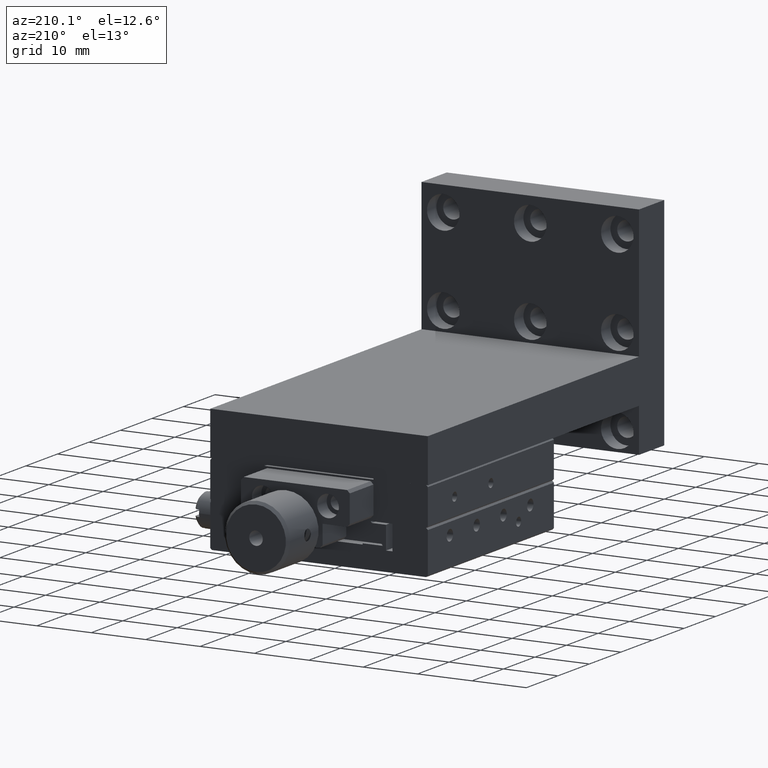
[diagram: clean part render]
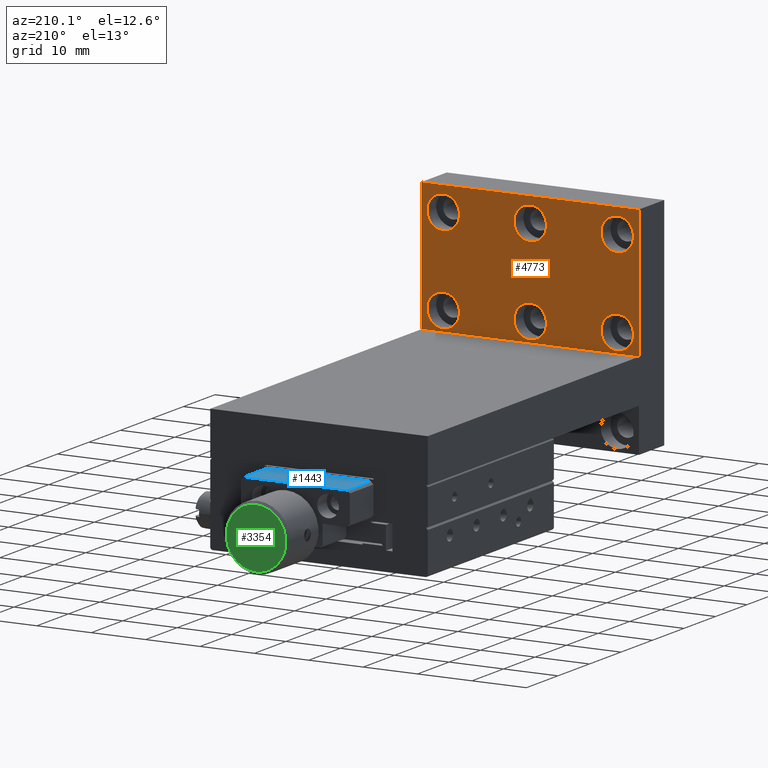
[diagram: same view with three faces highlighted in distinct colors, each labeled with its STEP entity id]
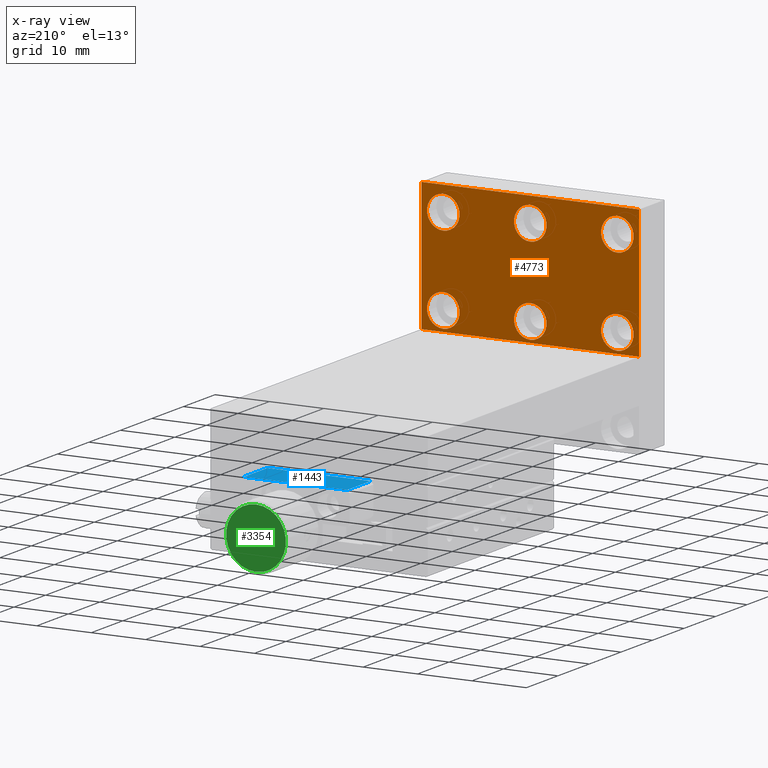
[diagram: x-ray of the same camera — body ghosted, the three highlighted faces saturated]
A machine part, auxiliary view with three faces highlighted in distinct colors.
The next image is the same camera in x-ray (body ghosted, the three faces saturated) — at least one of them is partly hidden behind the body in this view.
Their STEP definitions:

[orange] entity #4773 — the highlighted planar face has unit normal (0, -1, 0).
#43 = CARTESIAN_POINT ( 'NONE',  ( 20.00000000000000000, 8.000000000000000000, 8.000000000000000000 ) ) ;
#80 = CARTESIAN_POINT ( 'NONE',  ( 16.00000000000000000, 8.000000000000000000, 24.50000000000000000 ) ) ;
#152 = VERTEX_POINT ( 'NONE', #80 ) ;
#165 = EDGE_LOOP ( 'NONE', ( #3560 ) ) ;
#239 = AXIS2_PLACEMENT_3D ( 'NONE', #4601, #2807, #2842 ) ;
#263 = EDGE_LOOP ( 'NONE', ( #4228 ) ) ;
#352 = ORIENTED_EDGE ( 'NONE', *, *, #2422, .F. ) ;
#573 = VERTEX_POINT ( 'NONE', #1654 ) ;
#642 = EDGE_CURVE ( 'NONE', #5756, #5756, #5927, .T. ) ;
#960 = VECTOR ( 'NONE', #5364, 1000.000000000000000 ) ;
#973 = CIRCLE ( 'NONE', #2455, 2.999999999999999112 ) ;
#1000 = DIRECTION ( 'NONE',  ( 0.000000000000000000, 0.000000000000000000, -1.000000000000000000 ) ) ;
#1036 = DIRECTION ( 'NONE',  ( -0.000000000000000000, 1.000000000000000000, -0.000000000000000000 ) ) ;
#1045 = EDGE_LOOP ( 'NONE', ( #5657 ) ) ;
#1168 = ORIENTED_EDGE ( 'NONE', *, *, #5557, .F. ) ;
#1324 = DIRECTION ( 'NONE',  ( -0.000000000000000000, 1.000000000000000000, -0.000000000000000000 ) ) ;
#1458 = VERTEX_POINT ( 'NONE', #3044 ) ;
#1625 = EDGE_CURVE ( 'NONE', #152, #152, #5139, .T. ) ;
#1627 = VERTEX_POINT ( 'NONE', #5135 ) ;
#1628 = EDGE_CURVE ( 'NONE', #7171, #7171, #6975, .T. ) ;
#1654 = CARTESIAN_POINT ( 'NONE',  ( 16.00000000000000000, 8.000000000000000000, 8.500000000000000000 ) ) ;
#1702 = ORIENTED_EDGE ( 'NONE', *, *, #2057, .T. ) ;
#1922 = CARTESIAN_POINT ( 'NONE',  ( 20.00000000000000000, 8.000000000000000000, 8.000000000000000000 ) ) ;
#1929 = CARTESIAN_POINT ( 'NONE',  ( -16.00000000000000000, 8.000000000000000000, 8.500000000000000000 ) ) ;
#1935 = FACE_BOUND ( 'NONE', #3211, .T. ) ;
#1995 = LINE ( 'NONE', #1922, #960 ) ;
#2057 = EDGE_CURVE ( 'NONE', #1458, #1627, #5864, .T. ) ;
#2123 = CARTESIAN_POINT ( 'NONE',  ( -16.00000000000000000, 8.000000000000000000, 11.50000000000000000 ) ) ;
#2163 = VERTEX_POINT ( 'NONE', #7364 ) ;
#2290 = CARTESIAN_POINT ( 'NONE',  ( -16.00000000000000000, 8.000000000000000000, 27.50000000000000000 ) ) ;
#2399 = DIRECTION ( 'NONE',  ( 0.000000000000000000, -0.000000000000000000, -1.000000000000000000 ) ) ;
#2422 = EDGE_CURVE ( 'NONE', #5340, #1627, #4273, .T. ) ;
#2455 = AXIS2_PLACEMENT_3D ( 'NONE', #5388, #1324, #3014 ) ;
#2547 = EDGE_CURVE ( 'NONE', #2163, #2163, #4359, .T. ) ;
#2796 = DIRECTION ( 'NONE',  ( 0.000000000000000000, 0.000000000000000000, -1.000000000000000000 ) ) ;
#2807 = DIRECTION ( 'NONE',  ( -0.000000000000000000, 1.000000000000000000, -0.000000000000000000 ) ) ;
#2842 = DIRECTION ( 'NONE',  ( 0.000000000000000000, 0.000000000000000000, -1.000000000000000000 ) ) ;
#2848 = CARTESIAN_POINT ( 'NONE',  ( 0.000000000000000000, 8.000000000000000000, 8.500000000000000000 ) ) ;
#2956 = DIRECTION ( 'NONE',  ( 1.000000000000000000, -0.000000000000000000, 0.000000000000000000 ) ) ;
#3014 = DIRECTION ( 'NONE',  ( 0.000000000000000000, 0.000000000000000000, -1.000000000000000000 ) ) ;
#3044 = CARTESIAN_POINT ( 'NONE',  ( -20.00000000000000000, 7.999999999999996447, 32.00000000000000000 ) ) ;
#3122 = DIRECTION ( 'NONE',  ( -0.000000000000000000, -0.000000000000000000, 1.000000000000000000 ) ) ;
#3211 = EDGE_LOOP ( 'NONE', ( #6002 ) ) ;
#3321 = CARTESIAN_POINT ( 'NONE',  ( 16.00000000000000000, 8.000000000000000000, 11.50000000000000000 ) ) ;
#3331 = CARTESIAN_POINT ( 'NONE',  ( 0.000000000000000000, 8.000000000000000000, 11.50000000000000000 ) ) ;
#3552 = AXIS2_PLACEMENT_3D ( 'NONE', #3321, #4540, #5652 ) ;
#3555 = EDGE_CURVE ( 'NONE', #7475, #7475, #973, .T. ) ;
#3560 = ORIENTED_EDGE ( 'NONE', *, *, #1625, .F. ) ;
#3576 = PLANE ( 'NONE',  #6438 ) ;
#3621 = EDGE_LOOP ( 'NONE', ( #1702, #352, #1168, #7190 ) ) ;
#3629 = AXIS2_PLACEMENT_3D ( 'NONE', #2290, #6871, #6798 ) ;
#3780 = CARTESIAN_POINT ( 'NONE',  ( 20.00000000000000000, 7.999999999999989342, 0.000000000000000000 ) ) ;
#3791 = ORIENTED_EDGE ( 'NONE', *, *, #642, .F. ) ;
#3880 = VECTOR ( 'NONE', #7372, 1000.000000000000000 ) ;
#3888 = EDGE_CURVE ( 'NONE', #573, #573, #6848, .T. ) ;
#4155 = DIRECTION ( 'NONE',  ( 0.000000000000000000, -1.000000000000000000, 0.000000000000000000 ) ) ;
#4228 = ORIENTED_EDGE ( 'NONE', *, *, #3555, .F. ) ;
#4273 = LINE ( 'NONE', #3780, #6569 ) ;
#4352 = EDGE_LOOP ( 'NONE', ( #3791 ) ) ;
#4359 = CIRCLE ( 'NONE', #3629, 2.999999999999999112 ) ;
#4446 = ORIENTED_EDGE ( 'NONE', *, *, #3888, .F. ) ;
#4540 = DIRECTION ( 'NONE',  ( -0.000000000000000000, 1.000000000000000000, -0.000000000000000000 ) ) ;
#4601 = CARTESIAN_POINT ( 'NONE',  ( 16.00000000000000000, 8.000000000000000000, 27.50000000000000000 ) ) ;
#4688 = FACE_BOUND ( 'NONE', #165, .T. ) ;
#4773 = ADVANCED_FACE ( 'NONE', ( #4837, #4688, #5413, #1935, #4800, #7138, #6561 ), #3576, .F. ) ;
#4800 = FACE_BOUND ( 'NONE', #4352, .T. ) ;
#4837 = FACE_OUTER_BOUND ( 'NONE', #3621, .T. ) ;
#4913 = CARTESIAN_POINT ( 'NONE',  ( -20.00000000000000000, 7.999999999999989342, 0.000000000000000000 ) ) ;
#4939 = EDGE_CURVE ( 'NONE', #5259, #1458, #5031, .T. ) ;
#5031 = LINE ( 'NONE', #4913, #3880 ) ;
#5135 = CARTESIAN_POINT ( 'NONE',  ( 20.00000000000000000, 7.999999999999996447, 32.00000000000000000 ) ) ;
#5139 = CIRCLE ( 'NONE', #239, 2.999999999999999112 ) ;
#5248 = CARTESIAN_POINT ( 'NONE',  ( 20.00000000000000000, 8.000000000000000000, 32.00000000000000000 ) ) ;
#5259 = VERTEX_POINT ( 'NONE', #7365 ) ;
#5340 = VERTEX_POINT ( 'NONE', #6785 ) ;
#5364 = DIRECTION ( 'NONE',  ( 1.000000000000000000, 0.000000000000000000, 0.000000000000000000 ) ) ;
#5388 = CARTESIAN_POINT ( 'NONE',  ( 0.000000000000000000, 8.000000000000000000, 27.50000000000000000 ) ) ;
#5413 = FACE_BOUND ( 'NONE', #263, .T. ) ;
#5557 = EDGE_CURVE ( 'NONE', #5259, #5340, #1995, .T. ) ;
#5652 = DIRECTION ( 'NONE',  ( 0.000000000000000000, 0.000000000000000000, -1.000000000000000000 ) ) ;
#5657 = ORIENTED_EDGE ( 'NONE', *, *, #2547, .F. ) ;
#5697 = VECTOR ( 'NONE', #2956, 1000.000000000000000 ) ;
#5756 = VERTEX_POINT ( 'NONE', #2848 ) ;
#5821 = CARTESIAN_POINT ( 'NONE',  ( 0.000000000000000000, 8.000000000000000000, 24.50000000000000000 ) ) ;
#5864 = LINE ( 'NONE', #5248, #5697 ) ;
#5927 = CIRCLE ( 'NONE', #6899, 2.999999999999999112 ) ;
#6002 = ORIENTED_EDGE ( 'NONE', *, *, #1628, .F. ) ;
#6237 = AXIS2_PLACEMENT_3D ( 'NONE', #2123, #1036, #1000 ) ;
#6270 = DIRECTION ( 'NONE',  ( -0.000000000000000000, 1.000000000000000000, -0.000000000000000000 ) ) ;
#6438 = AXIS2_PLACEMENT_3D ( 'NONE', #43, #4155, #2399 ) ;
#6561 = FACE_BOUND ( 'NONE', #1045, .T. ) ;
#6569 = VECTOR ( 'NONE', #3122, 1000.000000000000000 ) ;
#6688 = EDGE_LOOP ( 'NONE', ( #4446 ) ) ;
#6785 = CARTESIAN_POINT ( 'NONE',  ( 20.00000000000000000, 7.999999999999992895, 8.000000000000000000 ) ) ;
#6798 = DIRECTION ( 'NONE',  ( 0.000000000000000000, 0.000000000000000000, -1.000000000000000000 ) ) ;
#6848 = CIRCLE ( 'NONE', #3552, 2.999999999999999112 ) ;
#6871 = DIRECTION ( 'NONE',  ( -0.000000000000000000, 1.000000000000000000, -0.000000000000000000 ) ) ;
#6899 = AXIS2_PLACEMENT_3D ( 'NONE', #3331, #6270, #2796 ) ;
#6975 = CIRCLE ( 'NONE', #6237, 2.999999999999999112 ) ;
#7138 = FACE_BOUND ( 'NONE', #6688, .T. ) ;
#7171 = VERTEX_POINT ( 'NONE', #1929 ) ;
#7190 = ORIENTED_EDGE ( 'NONE', *, *, #4939, .T. ) ;
#7364 = CARTESIAN_POINT ( 'NONE',  ( -16.00000000000000000, 8.000000000000000000, 24.50000000000000000 ) ) ;
#7365 = CARTESIAN_POINT ( 'NONE',  ( -20.00000000000000000, 7.999999999999992895, 8.000000000000000000 ) ) ;
#7372 = DIRECTION ( 'NONE',  ( -0.000000000000000000, -0.000000000000000000, 1.000000000000000000 ) ) ;
#7475 = VERTEX_POINT ( 'NONE', #5821 ) ;

[blue] entity #1443 — the highlighted planar face has unit normal (0, 0, -1).
#864 = DIRECTION ( 'NONE',  ( -1.000000000000000000, -0.000000000000000000, 0.000000000000000000 ) ) ;
#888 = VECTOR ( 'NONE', #7398, 1000.000000000000000 ) ;
#974 = VERTEX_POINT ( 'NONE', #2527 ) ;
#995 = LINE ( 'NONE', #4481, #888 ) ;
#1065 = LINE ( 'NONE', #3406, #5445 ) ;
#1075 = LINE ( 'NONE', #1651, #4922 ) ;
#1240 = EDGE_CURVE ( 'NONE', #6636, #7260, #4393, .T. ) ;
#1271 = ORIENTED_EDGE ( 'NONE', *, *, #2837, .F. ) ;
#1314 = AXIS2_PLACEMENT_3D ( 'NONE', #6093, #3005, #6749 ) ;
#1443 = ADVANCED_FACE ( 'NONE', ( #2045 ), #2089, .F. ) ;
#1636 = ORIENTED_EDGE ( 'NONE', *, *, #2245, .F. ) ;
#1651 = CARTESIAN_POINT ( 'NONE',  ( 9.500000000000000000, 82.50000000000000000, -0.5000000000000000000 ) ) ;
#2045 = FACE_OUTER_BOUND ( 'NONE', #4012, .T. ) ;
#2089 = PLANE ( 'NONE',  #1314 ) ;
#2245 = EDGE_CURVE ( 'NONE', #974, #6150, #1065, .T. ) ;
#2476 = CARTESIAN_POINT ( 'NONE',  ( -9.500000000000000000, 75.00000000000000000, -0.5000000000000001110 ) ) ;
#2527 = CARTESIAN_POINT ( 'NONE',  ( -9.500000000000000000, 82.50000000000000000, -0.5000000000000002220 ) ) ;
#2648 = CARTESIAN_POINT ( 'NONE',  ( 9.500000000000000000, 75.00000000000000000, -0.5000000000000000000 ) ) ;
#2837 = EDGE_CURVE ( 'NONE', #7260, #974, #995, .T. ) ;
#3005 = DIRECTION ( 'NONE',  ( 0.000000000000000000, 0.000000000000000000, -1.000000000000000000 ) ) ;
#3021 = CARTESIAN_POINT ( 'NONE',  ( 9.500000000000000000, 82.50000000000000000, -0.5000000000000000000 ) ) ;
#3028 = EDGE_CURVE ( 'NONE', #6150, #6636, #1075, .T. ) ;
#3406 = CARTESIAN_POINT ( 'NONE',  ( -9.500000000000000000, 82.50000000000000000, -0.5000000000000000000 ) ) ;
#3626 = DIRECTION ( 'NONE',  ( 1.000000000000000000, -0.000000000000000000, 0.000000000000000000 ) ) ;
#4012 = EDGE_LOOP ( 'NONE', ( #4536, #1636, #1271, #6816 ) ) ;
#4062 = DIRECTION ( 'NONE',  ( -0.000000000000000000, -1.000000000000000000, -0.000000000000000000 ) ) ;
#4337 = VECTOR ( 'NONE', #864, 1000.000000000000000 ) ;
#4393 = LINE ( 'NONE', #5004, #4337 ) ;
#4481 = CARTESIAN_POINT ( 'NONE',  ( -9.500000000000000000, 82.50000000000000000, -0.5000000000000000000 ) ) ;
#4536 = ORIENTED_EDGE ( 'NONE', *, *, #3028, .F. ) ;
#4922 = VECTOR ( 'NONE', #4062, 1000.000000000000000 ) ;
#5004 = CARTESIAN_POINT ( 'NONE',  ( 0.000000000000000000, 75.00000000000000000, -0.5000000000000000000 ) ) ;
#5445 = VECTOR ( 'NONE', #3626, 1000.000000000000000 ) ;
#6093 = CARTESIAN_POINT ( 'NONE',  ( -9.500000000000000000, 82.50000000000000000, -0.5000000000000000000 ) ) ;
#6150 = VERTEX_POINT ( 'NONE', #3021 ) ;
#6636 = VERTEX_POINT ( 'NONE', #2648 ) ;
#6749 = DIRECTION ( 'NONE',  ( -1.000000000000000000, 0.000000000000000000, -0.000000000000000000 ) ) ;
#6816 = ORIENTED_EDGE ( 'NONE', *, *, #1240, .F. ) ;
#7260 = VERTEX_POINT ( 'NONE', #2476 ) ;
#7398 = DIRECTION ( 'NONE',  ( 0.000000000000000000, 1.000000000000000000, 0.000000000000000000 ) ) ;

[green] entity #3354 — the highlighted planar face has unit normal (0, -1, 0).
#46 = EDGE_LOOP ( 'NONE', ( #6733 ) ) ;
#215 = EDGE_LOOP ( 'NONE', ( #2927 ) ) ;
#340 = DIRECTION ( 'NONE',  ( 0.000000000000000000, 1.000000000000000000, 0.000000000000000000 ) ) ;
#519 = CARTESIAN_POINT ( 'NONE',  ( -5.499999999999990230, 95.00000000000000000, -7.000000000000000000 ) ) ;
#1069 = DIRECTION ( 'NONE',  ( 0.000000000000000000, 0.000000000000000000, 1.000000000000000000 ) ) ;
#1137 = FACE_OUTER_BOUND ( 'NONE', #215, .T. ) ;
#1961 = EDGE_CURVE ( 'NONE', #5098, #5098, #3876, .T. ) ;
#2188 = PLANE ( 'NONE',  #2500 ) ;
#2191 = CARTESIAN_POINT ( 'NONE',  ( -2.220446049250310123E-16, 95.00000000000000000, -7.000000000000000000 ) ) ;
#2265 = DIRECTION ( 'NONE',  ( 0.000000000000000000, -1.000000000000000000, 0.000000000000000000 ) ) ;
#2405 = CIRCLE ( 'NONE', #4602, 5.500000000040471626 ) ;
#2500 = AXIS2_PLACEMENT_3D ( 'NONE', #519, #2265, #6380 ) ;
#2927 = ORIENTED_EDGE ( 'NONE', *, *, #4346, .F. ) ;
#2955 = CARTESIAN_POINT ( 'NONE',  ( -2.220446049250310123E-16, 94.99999999994315658, -12.50000000004047251 ) ) ;
#2997 = CARTESIAN_POINT ( 'NONE',  ( -2.220446049250310123E-16, 94.99999999994315658, -7.000000000000000000 ) ) ;
#3354 = ADVANCED_FACE ( 'NONE', ( #1137, #4512 ), #2188, .F. ) ;
#3876 = CIRCLE ( 'NONE', #4845, 1.250000000000000222 ) ;
#4147 = DIRECTION ( 'NONE',  ( 0.000000000000000000, 0.000000000000000000, -1.000000000000000000 ) ) ;
#4346 = EDGE_CURVE ( 'NONE', #5166, #5166, #2405, .T. ) ;
#4370 = CARTESIAN_POINT ( 'NONE',  ( -2.220446049250310123E-16, 95.00000000000000000, -5.750000000000000000 ) ) ;
#4512 = FACE_BOUND ( 'NONE', #46, .T. ) ;
#4602 = AXIS2_PLACEMENT_3D ( 'NONE', #2997, #4721, #4147 ) ;
#4721 = DIRECTION ( 'NONE',  ( 0.000000000000000000, -1.000000000000000000, 0.000000000000000000 ) ) ;
#4845 = AXIS2_PLACEMENT_3D ( 'NONE', #2191, #340, #1069 ) ;
#5098 = VERTEX_POINT ( 'NONE', #4370 ) ;
#5166 = VERTEX_POINT ( 'NONE', #2955 ) ;
#6380 = DIRECTION ( 'NONE',  ( 0.000000000000000000, -0.000000000000000000, -1.000000000000000000 ) ) ;
#6733 = ORIENTED_EDGE ( 'NONE', *, *, #1961, .F. ) ;